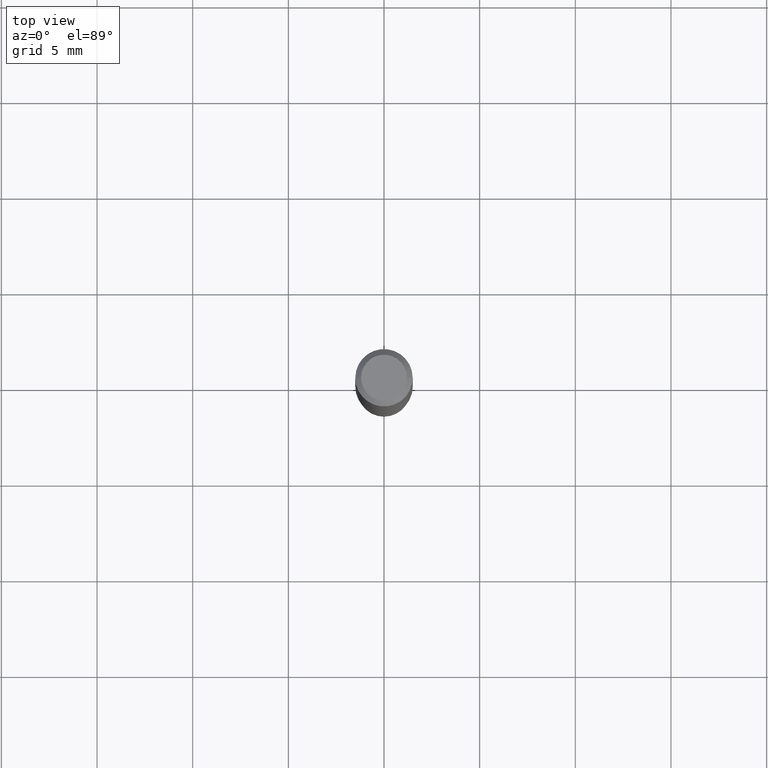
[diagram: clean part render]
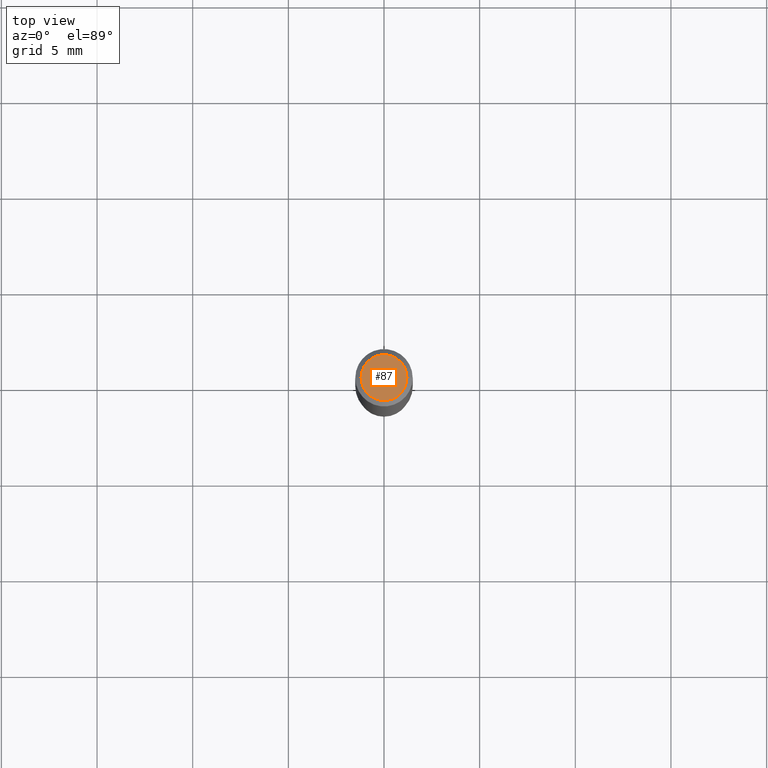
[diagram: same view with one face highlighted and labeled with its STEP entity id]
A machine part, top view. The second image highlights one B-rep face of the part: STEP entity #87.
In plain terms, the highlighted planar face has unit normal (0, -0, -1).
Its self-contained STEP definition (entity closure, byte-faithful):
#24 = FACE_OUTER_BOUND ( 'NONE', #238, .T. ) ;
#26 = CIRCLE ( 'NONE', #111, 0.04724000000000000421 ) ;
#53 = ORIENTED_EDGE ( 'NONE', *, *, #402, .T. ) ;
#72 = CARTESIAN_POINT ( 'NONE',  ( 8.265746106709734507E-48, -1.180129479067563789E-33, -3.380025165646692144E-19 ) ) ;
#87 = ADVANCED_FACE ( 'NONE', ( #24 ), #473, .F. ) ;
#111 = AXIS2_PLACEMENT_3D ( 'NONE', #72, #154, #113 ) ;
#113 = DIRECTION ( 'NONE',  ( 1.000000000000000000, -6.982962677686266711E-15, 4.876185090822587894E-29 ) ) ;
#114 = VERTEX_POINT ( 'NONE', #248 ) ;
#131 = CARTESIAN_POINT ( 'NONE',  ( 8.265746106709734507E-48, -1.180129479067563789E-33, -3.380025165646692144E-19 ) ) ;
#154 = DIRECTION ( 'NONE',  ( -2.445468806185136597E-29, 3.491481338843145583E-15, 1.000000000000000000 ) ) ;
#171 = DIRECTION ( 'NONE',  ( 2.438088387897960049E-29, -3.491481338843145188E-15, -1.000000000000000000 ) ) ;
#204 = CIRCLE ( 'NONE', #239, 0.04724000000000000421 ) ;
#235 = VERTEX_POINT ( 'NONE', #363 ) ;
#238 = EDGE_LOOP ( 'NONE', ( #53, #306 ) ) ;
#239 = AXIS2_PLACEMENT_3D ( 'NONE', #131, #471, #436 ) ;
#248 = CARTESIAN_POINT ( 'NONE',  ( 0.04724000000000000421, -3.852183633974369345E-16, -3.380025165621689721E-19 ) ) ;
#306 = ORIENTED_EDGE ( 'NONE', *, *, #484, .T. ) ;
#326 = DIRECTION ( 'NONE',  ( -1.000000000000000000, 6.982962677686265922E-15, -4.876176775795935793E-29 ) ) ;
#335 = AXIS2_PLACEMENT_3D ( 'NONE', #359, #171, #326 ) ;
#359 = CARTESIAN_POINT ( 'NONE',  ( 4.132873053354867254E-48, -5.900647395337818946E-34, -1.690012582823346072E-19 ) ) ;
#363 = CARTESIAN_POINT ( 'NONE',  ( -0.04724000000000000421, 3.504923541997677355E-16, -3.380025165670481712E-19 ) ) ;
#402 = EDGE_CURVE ( 'NONE', #235, #114, #26, .T. ) ;
#436 = DIRECTION ( 'NONE',  ( 1.000000000000000000, -6.982962677686266711E-15, 4.876185090822587894E-29 ) ) ;
#471 = DIRECTION ( 'NONE',  ( -2.445468806185136597E-29, 3.491481338843145583E-15, 1.000000000000000000 ) ) ;
#473 = PLANE ( 'NONE',  #335 ) ;
#484 = EDGE_CURVE ( 'NONE', #114, #235, #204, .T. ) ;